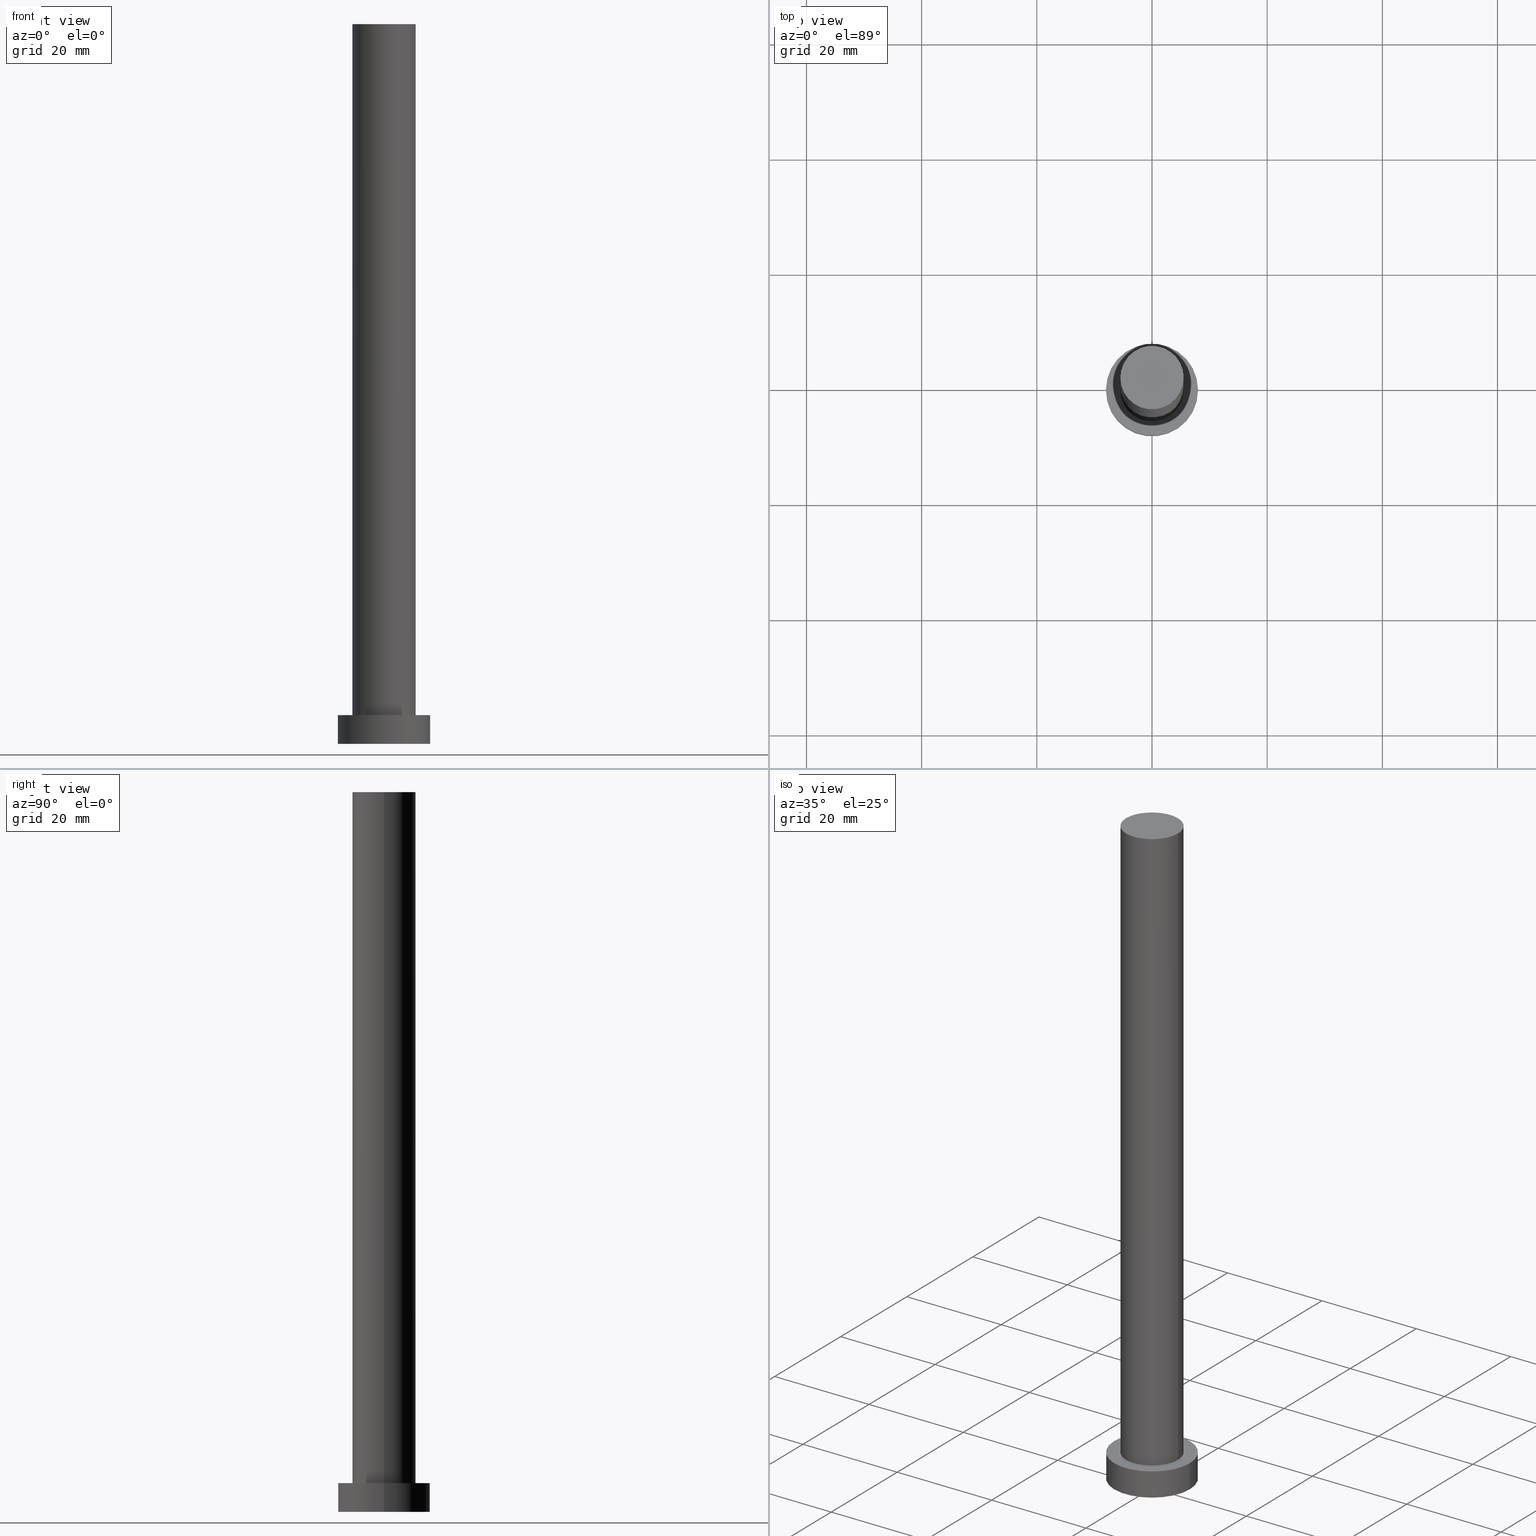
[diagram: canonical four-view strip — front | top / right | iso, engineering-drawing reading convention]
A machine part, canonical four-view strip (front | top / right | iso — engineering-drawing reading convention). The complete STEP part file that produces these views, byte-faithful:
ISO-10303-21;
HEADER;
FILE_DESCRIPTION (( 'STEP AP203' ),
    '1' );
FILE_NAME ('e15d.STEP',
    '2023-02-13T13:12:01',
    ( '' ),
    ( '' ),
    'SwSTEP 2.0',
    'SolidWorks 2019',
    '' );
FILE_SCHEMA (( 'CONFIG_CONTROL_DESIGN' ));
ENDSEC;

DATA;
#1 = APPROVAL ( #164, 'NEUR�EN�' ) ;
#2 = CALENDAR_DATE ( 2023, 13, 2 ) ;
#3 = LOCAL_TIME ( 14, 12, 1.000000000000000000, #107 ) ;
#4 = CYLINDRICAL_SURFACE ( 'NONE', #67, 5.500000000000000000 ) ;
#5 = DIRECTION ( 'NONE',  ( 0.000000000000000000, 0.000000000000000000, 1.000000000000000000 ) ) ;
#6 = ADVANCED_FACE ( 'NONE', ( #87, #201 ), #42, .T. ) ;
#7 = APPROVAL_DATE_TIME ( #112, #98 ) ;
#8 = PLANE ( 'NONE',  #171 ) ;
#9 = SHAPE_DEFINITION_REPRESENTATION ( #69, #84 ) ;
#10 =( LENGTH_UNIT ( ) NAMED_UNIT ( * ) SI_UNIT ( .MILLI., .METRE. ) );
#11 = ORIENTED_EDGE ( 'NONE', *, *, #224, .T. ) ;
#12 = ORIENTED_EDGE ( 'NONE', *, *, #60, .T. ) ;
#13 = ADVANCED_FACE ( 'NONE', ( #146 ), #222, .T. ) ;
#14 = CALENDAR_DATE ( 2023, 13, 2 ) ;
#15 = ORIENTED_EDGE ( 'NONE', *, *, #170, .T. ) ;
#16 = CARTESIAN_POINT ( 'NONE',  ( 8.000000000000000000, 9.797174393178825657E-16, 5.000000000000000000 ) ) ;
#17 = DIRECTION ( 'NONE',  ( 0.000000000000000000, 0.000000000000000000, 1.000000000000000000 ) ) ;
#18 = CARTESIAN_POINT ( 'NONE',  ( 5.500000000000000000, 6.735557395310442023E-16, 125.0000000000000000 ) ) ;
#19 = ORIENTED_EDGE ( 'NONE', *, *, #118, .T. ) ;
#20 = CC_DESIGN_APPROVAL ( #1, ( #231 ) ) ;
#21 = ORIENTED_EDGE ( 'NONE', *, *, #204, .T. ) ;
#22 = DIRECTION ( 'NONE',  ( -1.000000000000000000, 0.000000000000000000, 0.000000000000000000 ) ) ;
#23 = APPROVAL ( #232, 'NEUR�EN�' ) ;
#24 = VECTOR ( 'NONE', #116, 1000.000000000000000 ) ;
#25 = CALENDAR_DATE ( 2023, 13, 2 ) ;
#26 = EDGE_CURVE ( 'NONE', #246, #114, #101, .T. ) ;
#27 = DIRECTION ( 'NONE',  ( 1.000000000000000000, 0.000000000000000000, 0.000000000000000000 ) ) ;
#28 = AXIS2_PLACEMENT_3D ( 'NONE', #236, #132, #239 ) ;
#29 = CARTESIAN_POINT ( 'NONE',  ( 5.500000000000000000, 6.735557395310442023E-16, 5.000000000000000000 ) ) ;
#30 = AXIS2_PLACEMENT_3D ( 'NONE', #53, #213, #120 ) ;
#31 = ADVANCED_FACE ( 'NONE', ( #219 ), #151, .T. ) ;
#32 = ORIENTED_EDGE ( 'NONE', *, *, #71, .F. ) ;
#33 = VECTOR ( 'NONE', #85, 1000.000000000000000 ) ;
#34 = CARTESIAN_POINT ( 'NONE',  ( -5.500000000000000000, 0.000000000000000000, 125.0000000000000000 ) ) ;
#35 = VERTEX_POINT ( 'NONE', #29 ) ;
#36 = MECHANICAL_CONTEXT ( 'NONE', #242, 'mechanical' ) ;
#37 = ORIENTED_EDGE ( 'NONE', *, *, #102, .T. ) ;
#38 = DIRECTION ( 'NONE',  ( -0.000000000000000000, -0.000000000000000000, -1.000000000000000000 ) ) ;
#39 = LINE ( 'NONE', #34, #24 ) ;
#40 = CARTESIAN_POINT ( 'NONE',  ( 5.500000000000000000, 6.735557395310442023E-16, 125.0000000000000000 ) ) ;
#41 = EDGE_CURVE ( 'NONE', #191, #136, #108, .T. ) ;
#42 = PLANE ( 'NONE',  #49 ) ;
#43 = CIRCLE ( 'NONE', #212, 8.000000000000000000 ) ;
#44 = DIRECTION ( 'NONE',  ( -0.000000000000000000, -0.000000000000000000, -1.000000000000000000 ) ) ;
#45 = PERSON_AND_ORGANIZATION ( #127, #255 ) ;
#46 = CALENDAR_DATE ( 2023, 13, 2 ) ;
#47 = DIRECTION ( 'NONE',  ( -1.000000000000000000, 0.000000000000000000, 0.000000000000000000 ) ) ;
#48 = PERSON_AND_ORGANIZATION_ROLE ( 'creator' ) ;
#49 = AXIS2_PLACEMENT_3D ( 'NONE', #179, #143, #162 ) ;
#50 = EDGE_CURVE ( 'NONE', #136, #191, #178, .T. ) ;
#51 = CARTESIAN_POINT ( 'NONE',  ( -5.500000000000000000, 0.000000000000000000, 5.000000000000000000 ) ) ;
#52 = EDGE_LOOP ( 'NONE', ( #93, #19, #12, #227 ) ) ;
#53 = CARTESIAN_POINT ( 'NONE',  ( 0.000000000000000000, 0.000000000000000000, 125.0000000000000000 ) ) ;
#54 = CARTESIAN_POINT ( 'NONE',  ( 0.000000000000000000, 0.000000000000000000, 0.000000000000000000 ) ) ;
#55 = VERTEX_POINT ( 'NONE', #167 ) ;
#56 = CARTESIAN_POINT ( 'NONE',  ( 0.000000000000000000, 0.000000000000000000, 0.000000000000000000 ) ) ;
#57 = CARTESIAN_POINT ( 'NONE',  ( -8.000000000000000000, 0.000000000000000000, 5.000000000000000000 ) ) ;
#58 = ORIENTED_EDGE ( 'NONE', *, *, #26, .F. ) ;
#59 = CARTESIAN_POINT ( 'NONE',  ( 8.000000000000000000, 9.797174393178825657E-16, 0.000000000000000000 ) ) ;
#60 = EDGE_CURVE ( 'NONE', #35, #216, #79, .T. ) ;
#61 = PERSON_AND_ORGANIZATION_ROLE ( 'design_owner' ) ;
#62 = CLOSED_SHELL ( 'NONE', ( #13, #200, #31, #6, #217, #209, #233 ) ) ;
#63 = ORIENTED_EDGE ( 'NONE', *, *, #71, .T. ) ;
#64 = CC_DESIGN_PERSON_AND_ORGANIZATION_ASSIGNMENT ( #105, #150, ( #110 ) ) ;
#65 = PRODUCT_RELATED_PRODUCT_CATEGORY ( 'detail', '', ( #131 ) ) ;
#66 = CC_DESIGN_SECURITY_CLASSIFICATION ( #231, ( #190 ) ) ;
#67 = AXIS2_PLACEMENT_3D ( 'NONE', #104, #44, #91 ) ;
#68 = FACE_OUTER_BOUND ( 'NONE', #152, .T. ) ;
#69 = PRODUCT_DEFINITION_SHAPE ( 'NONE', 'NONE',  #110 ) ;
#70 = PERSON_AND_ORGANIZATION ( #127, #255 ) ;
#71 = EDGE_CURVE ( 'NONE', #55, #218, #73, .T. ) ;
#72 = PERSON_AND_ORGANIZATION ( #127, #255 ) ;
#73 = LINE ( 'NONE', #57, #139 ) ;
#74 = AXIS2_PLACEMENT_3D ( 'NONE', #115, #189, #117 ) ;
#75 = ORIENTED_EDGE ( 'NONE', *, *, #170, .F. ) ;
#76 = ORIENTED_EDGE ( 'NONE', *, *, #224, .F. ) ;
#77 = APPLICATION_PROTOCOL_DEFINITION ( 'international standard', 'config_control_design', 1994, #242 ) ;
#78 = CC_DESIGN_PERSON_AND_ORGANIZATION_ASSIGNMENT ( #205, #207, ( #231 ) ) ;
#79 = CIRCLE ( 'NONE', #214, 5.500000000000000000 ) ;
#80 = ORIENTED_EDGE ( 'NONE', *, *, #118, .F. ) ;
#81 = CC_DESIGN_APPROVAL ( #98, ( #110 ) ) ;
#82 = ORIENTED_EDGE ( 'NONE', *, *, #50, .T. ) ;
#83 = LOCAL_TIME ( 14, 12, 1.000000000000000000, #182 ) ;
#84 = ADVANCED_BREP_SHAPE_REPRESENTATION ( 'e15d', ( #135, #74 ), #175 ) ;
#85 = DIRECTION ( 'NONE',  ( -0.000000000000000000, -0.000000000000000000, -1.000000000000000000 ) ) ;
#86 = LOCAL_TIME ( 14, 12, 1.000000000000000000, #130 ) ;
#87 = FACE_BOUND ( 'NONE', #215, .T. ) ;
#88 = DATE_AND_TIME ( #25, #240 ) ;
#89 = CIRCLE ( 'NONE', #121, 8.000000000000000000 ) ;
#90 = DATE_AND_TIME ( #2, #3 ) ;
#91 = DIRECTION ( 'NONE',  ( -1.000000000000000000, 0.000000000000000000, 0.000000000000000000 ) ) ;
#92 = CC_DESIGN_DATE_AND_TIME_ASSIGNMENT ( #90, #166, ( #110 ) ) ;
#93 = ORIENTED_EDGE ( 'NONE', *, *, #50, .F. ) ;
#94 = CARTESIAN_POINT ( 'NONE',  ( -5.500000000000000000, 0.000000000000000000, 125.0000000000000000 ) ) ;
#95 = LOCAL_TIME ( 14, 12, 1.000000000000000000, #103 ) ;
#96 =( NAMED_UNIT ( * ) SI_UNIT ( $, .STERADIAN. ) SOLID_ANGLE_UNIT ( ) );
#97 = ORIENTED_EDGE ( 'NONE', *, *, #41, .F. ) ;
#98 = APPROVAL ( #100, 'NEUR�EN�' ) ;
#99 = VECTOR ( 'NONE', #38, 1000.000000000000000 ) ;
#100 = APPROVAL_STATUS ( 'not_yet_approved' ) ;
#101 = LINE ( 'NONE', #254, #33 ) ;
#102 = EDGE_CURVE ( 'NONE', #55, #246, #165, .T. ) ;
#103 = COORDINATED_UNIVERSAL_TIME_OFFSET ( 1, 0, .AHEAD. ) ;
#104 = CARTESIAN_POINT ( 'NONE',  ( 0.000000000000000000, 0.000000000000000000, 125.0000000000000000 ) ) ;
#105 = PERSON_AND_ORGANIZATION ( #127, #255 ) ;
#106 = DIRECTION ( 'NONE',  ( 0.000000000000000000, 0.000000000000000000, 1.000000000000000000 ) ) ;
#107 = COORDINATED_UNIVERSAL_TIME_OFFSET ( 1, 0, .AHEAD. ) ;
#108 = CIRCLE ( 'NONE', #183, 5.500000000000000000 ) ;
#109 = FACE_OUTER_BOUND ( 'NONE', #173, .T. ) ;
#110 = PRODUCT_DEFINITION ( 'NEZN�M�', '', #190, #159 ) ;
#111 = CARTESIAN_POINT ( 'NONE',  ( 0.000000000000000000, 0.000000000000000000, 5.000000000000000000 ) ) ;
#112 = DATE_AND_TIME ( #211, #95 ) ;
#113 = DIRECTION ( 'NONE',  ( 0.000000000000000000, 0.000000000000000000, 1.000000000000000000 ) ) ;
#114 = VERTEX_POINT ( 'NONE', #59 ) ;
#115 = CARTESIAN_POINT ( 'NONE',  ( 0.000000000000000000, 0.000000000000000000, 0.000000000000000000 ) ) ;
#116 = DIRECTION ( 'NONE',  ( -0.000000000000000000, -0.000000000000000000, -1.000000000000000000 ) ) ;
#117 = DIRECTION ( 'NONE',  ( 1.000000000000000000, 0.000000000000000000, 0.000000000000000000 ) ) ;
#118 = EDGE_CURVE ( 'NONE', #136, #35, #195, .T. ) ;
#119 = ORIENTED_EDGE ( 'NONE', *, *, #196, .T. ) ;
#120 = DIRECTION ( 'NONE',  ( 1.000000000000000000, 0.000000000000000000, -0.000000000000000000 ) ) ;
#121 = AXIS2_PLACEMENT_3D ( 'NONE', #186, #129, #163 ) ;
#122 = CARTESIAN_POINT ( 'NONE',  ( 0.000000000000000000, 0.000000000000000000, 5.000000000000000000 ) ) ;
#123 = EDGE_LOOP ( 'NONE', ( #37, #11 ) ) ;
#124 = CC_DESIGN_PERSON_AND_ORGANIZATION_ASSIGNMENT ( #180, #235, ( #190 ) ) ;
#125 = CYLINDRICAL_SURFACE ( 'NONE', #145, 8.000000000000000000 ) ;
#126 = SECURITY_CLASSIFICATION_LEVEL ( 'unclassified' ) ;
#127 = PERSON ( 'NEUR�EN�', 'NEUR�EN�', 'NEUR�EN�', ('NEUR�EN�'), ('NEUR�EN�'), ('NEUR�EN�') ) ;
#128 = APPROVAL_DATE_TIME ( #184, #23 ) ;
#129 = DIRECTION ( 'NONE',  ( 0.000000000000000000, 0.000000000000000000, 1.000000000000000000 ) ) ;
#130 = COORDINATED_UNIVERSAL_TIME_OFFSET ( 1, 0, .AHEAD. ) ;
#131 = PRODUCT ( 'e15d', 'e15d', '', ( #36 ) ) ;
#132 = DIRECTION ( 'NONE',  ( -0.000000000000000000, -0.000000000000000000, -1.000000000000000000 ) ) ;
#133 = CARTESIAN_POINT ( 'NONE',  ( 0.000000000000000000, 0.000000000000000000, 5.000000000000000000 ) ) ;
#134 = DIRECTION ( 'NONE',  ( 1.000000000000000000, 0.000000000000000000, -0.000000000000000000 ) ) ;
#135 = MANIFOLD_SOLID_BREP ( 'P�idat vysunut�m3', #62 ) ;
#136 = VERTEX_POINT ( 'NONE', #40 ) ;
#137 = ORIENTED_EDGE ( 'NONE', *, *, #102, .F. ) ;
#138 = APPLICATION_PROTOCOL_DEFINITION ( 'international standard', 'config_control_design', 1994, #199 ) ;
#139 = VECTOR ( 'NONE', #248, 1000.000000000000000 ) ;
#140 = CARTESIAN_POINT ( 'NONE',  ( 0.000000000000000000, 0.000000000000000000, 5.000000000000000000 ) ) ;
#141 = ORIENTED_EDGE ( 'NONE', *, *, #26, .T. ) ;
#142 = AXIS2_PLACEMENT_3D ( 'NONE', #122, #252, #198 ) ;
#143 = DIRECTION ( 'NONE',  ( 0.000000000000000000, 0.000000000000000000, 1.000000000000000000 ) ) ;
#144 = EDGE_CURVE ( 'NONE', #114, #218, #237, .T. ) ;
#145 = AXIS2_PLACEMENT_3D ( 'NONE', #238, #243, #47 ) ;
#146 = FACE_OUTER_BOUND ( 'NONE', #52, .T. ) ;
#147 = CARTESIAN_POINT ( 'NONE',  ( 0.000000000000000000, 0.000000000000000000, 125.0000000000000000 ) ) ;
#148 = AXIS2_PLACEMENT_3D ( 'NONE', #203, #234, #22 ) ;
#149 = DIRECTION ( 'NONE',  ( 1.000000000000000000, 0.000000000000000000, 0.000000000000000000 ) ) ;
#150 = PERSON_AND_ORGANIZATION_ROLE ( 'creator' ) ;
#151 = CYLINDRICAL_SURFACE ( 'NONE', #28, 8.000000000000000000 ) ;
#152 = EDGE_LOOP ( 'NONE', ( #76, #141, #160, #32 ) ) ;
#153 = DIRECTION ( 'NONE',  ( 0.000000000000000000, 0.000000000000000000, 1.000000000000000000 ) ) ;
#154 = ORIENTED_EDGE ( 'NONE', *, *, #41, .T. ) ;
#155 = FACE_OUTER_BOUND ( 'NONE', #229, .T. ) ;
#156 = DIRECTION ( 'NONE',  ( 0.000000000000000000, 0.000000000000000000, 1.000000000000000000 ) ) ;
#157 = APPROVAL_PERSON_ORGANIZATION ( #72, #1, #225 ) ;
#158 = EDGE_LOOP ( 'NONE', ( #58, #137, #63, #21 ) ) ;
#159 = DESIGN_CONTEXT ( 'detailed design', #199, 'design' ) ;
#160 = ORIENTED_EDGE ( 'NONE', *, *, #144, .T. ) ;
#161 = APPROVAL_ROLE ( '' ) ;
#162 = DIRECTION ( 'NONE',  ( 1.000000000000000000, 0.000000000000000000, -0.000000000000000000 ) ) ;
#163 = DIRECTION ( 'NONE',  ( 1.000000000000000000, 0.000000000000000000, 0.000000000000000000 ) ) ;
#164 = APPROVAL_STATUS ( 'not_yet_approved' ) ;
#165 = CIRCLE ( 'NONE', #220, 8.000000000000000000 ) ;
#166 = DATE_TIME_ROLE ( 'creation_date' ) ;
#167 = CARTESIAN_POINT ( 'NONE',  ( -8.000000000000000000, 0.000000000000000000, 5.000000000000000000 ) ) ;
#168 = COORDINATED_UNIVERSAL_TIME_OFFSET ( 1, 0, .AHEAD. ) ;
#169 = CARTESIAN_POINT ( 'NONE',  ( 0.000000000000000000, 0.000000000000000000, 125.0000000000000000 ) ) ;
#170 = EDGE_CURVE ( 'NONE', #216, #35, #210, .T. ) ;
#171 = AXIS2_PLACEMENT_3D ( 'NONE', #56, #245, #134 ) ;
#172 = DIRECTION ( 'NONE',  ( 1.000000000000000000, 0.000000000000000000, 0.000000000000000000 ) ) ;
#173 = EDGE_LOOP ( 'NONE', ( #80, #97, #119, #15 ) ) ;
#174 = DATE_AND_TIME ( #14, #86 ) ;
#175 =( GEOMETRIC_REPRESENTATION_CONTEXT ( 3 ) GLOBAL_UNCERTAINTY_ASSIGNED_CONTEXT ( ( #194 ) ) GLOBAL_UNIT_ASSIGNED_CONTEXT ( ( #10, #176, #96 ) ) REPRESENTATION_CONTEXT ( 'NONE', 'WORKASPACE' ) );
#176 =( NAMED_UNIT ( * ) PLANE_ANGLE_UNIT ( ) SI_UNIT ( $, .RADIAN. ) );
#177 = ORIENTED_EDGE ( 'NONE', *, *, #60, .F. ) ;
#178 = CIRCLE ( 'NONE', #193, 5.500000000000000000 ) ;
#179 = CARTESIAN_POINT ( 'NONE',  ( 0.000000000000000000, 0.000000000000000000, 5.000000000000000000 ) ) ;
#180 = PERSON_AND_ORGANIZATION ( #127, #255 ) ;
#181 = APPROVAL_ROLE ( '' ) ;
#182 = COORDINATED_UNIVERSAL_TIME_OFFSET ( 1, 0, .AHEAD. ) ;
#183 = AXIS2_PLACEMENT_3D ( 'NONE', #147, #106, #149 ) ;
#184 = DATE_AND_TIME ( #46, #83 ) ;
#185 = CC_DESIGN_APPROVAL ( #23, ( #190 ) ) ;
#186 = CARTESIAN_POINT ( 'NONE',  ( 0.000000000000000000, 0.000000000000000000, 0.000000000000000000 ) ) ;
#187 = CC_DESIGN_PERSON_AND_ORGANIZATION_ASSIGNMENT ( #45, #48, ( #190 ) ) ;
#188 = ORIENTED_EDGE ( 'NONE', *, *, #144, .F. ) ;
#189 = DIRECTION ( 'NONE',  ( 0.000000000000000000, 0.000000000000000000, 1.000000000000000000 ) ) ;
#190 = PRODUCT_DEFINITION_FORMATION_WITH_SPECIFIED_SOURCE ( 'LIBOVOLN�', '', #131, .NOT_KNOWN. ) ;
#191 = VERTEX_POINT ( 'NONE', #94 ) ;
#192 = ORIENTED_EDGE ( 'NONE', *, *, #204, .F. ) ;
#193 = AXIS2_PLACEMENT_3D ( 'NONE', #169, #113, #27 ) ;
#194 = UNCERTAINTY_MEASURE_WITH_UNIT (LENGTH_MEASURE( 1.000000000000000082E-05 ), #10, 'distance_accuracy_value', 'NONE');
#195 = LINE ( 'NONE', #18, #99 ) ;
#196 = EDGE_CURVE ( 'NONE', #191, #216, #39, .T. ) ;
#197 = PERSON_AND_ORGANIZATION ( #127, #255 ) ;
#198 = DIRECTION ( 'NONE',  ( 1.000000000000000000, 0.000000000000000000, 0.000000000000000000 ) ) ;
#199 = APPLICATION_CONTEXT ( 'configuration controlled 3d designs of mechanical parts and assemblies' ) ;
#200 = ADVANCED_FACE ( 'NONE', ( #68 ), #125, .T. ) ;
#201 = FACE_OUTER_BOUND ( 'NONE', #123, .T. ) ;
#202 = CC_DESIGN_DATE_AND_TIME_ASSIGNMENT ( #88, #208, ( #231 ) ) ;
#203 = CARTESIAN_POINT ( 'NONE',  ( 0.000000000000000000, 0.000000000000000000, 125.0000000000000000 ) ) ;
#204 = EDGE_CURVE ( 'NONE', #218, #114, #89, .T. ) ;
#205 = PERSON_AND_ORGANIZATION ( #127, #255 ) ;
#206 = APPROVAL_PERSON_ORGANIZATION ( #197, #98, #161 ) ;
#207 = PERSON_AND_ORGANIZATION_ROLE ( 'classification_officer' ) ;
#208 = DATE_TIME_ROLE ( 'classification_date' ) ;
#209 = ADVANCED_FACE ( 'NONE', ( #109 ), #4, .T. ) ;
#210 = CIRCLE ( 'NONE', #142, 5.500000000000000000 ) ;
#211 = CALENDAR_DATE ( 2023, 13, 2 ) ;
#212 = AXIS2_PLACEMENT_3D ( 'NONE', #133, #153, #172 ) ;
#213 = DIRECTION ( 'NONE',  ( 0.000000000000000000, 0.000000000000000000, 1.000000000000000000 ) ) ;
#214 = AXIS2_PLACEMENT_3D ( 'NONE', #111, #5, #241 ) ;
#215 = EDGE_LOOP ( 'NONE', ( #75, #177 ) ) ;
#216 = VERTEX_POINT ( 'NONE', #51 ) ;
#217 = ADVANCED_FACE ( 'NONE', ( #226 ), #8, .F. ) ;
#218 = VERTEX_POINT ( 'NONE', #247 ) ;
#219 = FACE_OUTER_BOUND ( 'NONE', #158, .T. ) ;
#220 = AXIS2_PLACEMENT_3D ( 'NONE', #140, #156, #228 ) ;
#221 = CC_DESIGN_PERSON_AND_ORGANIZATION_ASSIGNMENT ( #251, #61, ( #131 ) ) ;
#222 = CYLINDRICAL_SURFACE ( 'NONE', #148, 5.500000000000000000 ) ;
#223 = APPROVAL_PERSON_ORGANIZATION ( #70, #23, #181 ) ;
#224 = EDGE_CURVE ( 'NONE', #246, #55, #43, .T. ) ;
#225 = APPROVAL_ROLE ( '' ) ;
#226 = FACE_OUTER_BOUND ( 'NONE', #244, .T. ) ;
#227 = ORIENTED_EDGE ( 'NONE', *, *, #196, .F. ) ;
#228 = DIRECTION ( 'NONE',  ( 1.000000000000000000, 0.000000000000000000, 0.000000000000000000 ) ) ;
#229 = EDGE_LOOP ( 'NONE', ( #154, #82 ) ) ;
#230 = PLANE ( 'NONE',  #30 ) ;
#231 = SECURITY_CLASSIFICATION ( '', '', #126 ) ;
#232 = APPROVAL_STATUS ( 'not_yet_approved' ) ;
#233 = ADVANCED_FACE ( 'NONE', ( #155 ), #230, .T. ) ;
#234 = DIRECTION ( 'NONE',  ( -0.000000000000000000, -0.000000000000000000, -1.000000000000000000 ) ) ;
#235 = PERSON_AND_ORGANIZATION_ROLE ( 'design_supplier' ) ;
#236 = CARTESIAN_POINT ( 'NONE',  ( 0.000000000000000000, 0.000000000000000000, 5.000000000000000000 ) ) ;
#237 = CIRCLE ( 'NONE', #249, 8.000000000000000000 ) ;
#238 = CARTESIAN_POINT ( 'NONE',  ( 0.000000000000000000, 0.000000000000000000, 5.000000000000000000 ) ) ;
#239 = DIRECTION ( 'NONE',  ( -1.000000000000000000, 0.000000000000000000, 0.000000000000000000 ) ) ;
#240 = LOCAL_TIME ( 14, 12, 1.000000000000000000, #168 ) ;
#241 = DIRECTION ( 'NONE',  ( 1.000000000000000000, 0.000000000000000000, 0.000000000000000000 ) ) ;
#242 = APPLICATION_CONTEXT ( 'configuration controlled 3d designs of mechanical parts and assemblies' ) ;
#243 = DIRECTION ( 'NONE',  ( -0.000000000000000000, -0.000000000000000000, -1.000000000000000000 ) ) ;
#244 = EDGE_LOOP ( 'NONE', ( #192, #188 ) ) ;
#245 = DIRECTION ( 'NONE',  ( 0.000000000000000000, 0.000000000000000000, 1.000000000000000000 ) ) ;
#246 = VERTEX_POINT ( 'NONE', #16 ) ;
#247 = CARTESIAN_POINT ( 'NONE',  ( -8.000000000000000000, 0.000000000000000000, 0.000000000000000000 ) ) ;
#248 = DIRECTION ( 'NONE',  ( -0.000000000000000000, -0.000000000000000000, -1.000000000000000000 ) ) ;
#249 = AXIS2_PLACEMENT_3D ( 'NONE', #54, #17, #253 ) ;
#250 = APPROVAL_DATE_TIME ( #174, #1 ) ;
#251 = PERSON_AND_ORGANIZATION ( #127, #255 ) ;
#252 = DIRECTION ( 'NONE',  ( 0.000000000000000000, 0.000000000000000000, 1.000000000000000000 ) ) ;
#253 = DIRECTION ( 'NONE',  ( 1.000000000000000000, 0.000000000000000000, 0.000000000000000000 ) ) ;
#254 = CARTESIAN_POINT ( 'NONE',  ( 8.000000000000000000, 9.797174393178825657E-16, 5.000000000000000000 ) ) ;
#255 = ORGANIZATION ( 'NEUR�EN�', 'NEUR�EN�', '' ) ;
ENDSEC;
END-ISO-10303-21;
